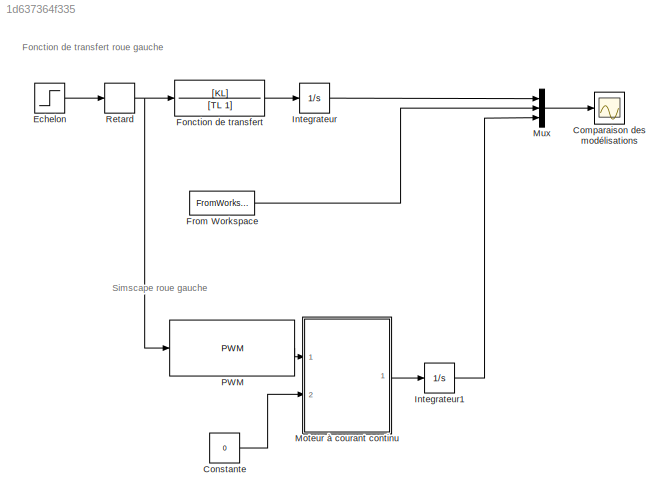
MODEL slx_1d637364f335
KIND model
CONFIG AbsTol = auto
CONFIG FixedStep = 0.00025
CONFIG InitFcn = load('LeftOutput_Measures.mat');\nload('LeftOutput_Measures.mat');\nParametres_Rover
CONFIG MaxStep = auto
CONFIG MinStep = auto
CONFIG RelTol = 1e-3
CONFIG SampleTimeConstraint = Unconstrained
CONFIG Solver = ode23t
CONFIG SolverMode = Auto
CONFIG SolverName = ode23t
CONFIG StartTime = 0.0
CONFIG StopTime = 10
BLOCK [Scope] Comparaison des modélisations
  Floating = off
  LimitDataPoints = off
  NumInputPorts = 1
  Ports = [1]
  TimeRange = 10
  YMax = 9000
  YMin = 1500
BLOCK [Constant] Constante
  Value = 0
BLOCK [Step] Echelon
  After = 50
  SampleTime = 0
  Time = 3
BLOCK [TransferFcn] Fonction de transfert
  Denominator = [TL 1]
  Numerator = [KL]
BLOCK [FromWorkspace] From Workspace
  SampleTime = 0
  VariableName = LeftOutput
  ZeroCross = on
BLOCK [Integrator] Integrateur
  Ports = [1, 1]
BLOCK [Integrator] Integrateur1
  Ports = [1, 1]
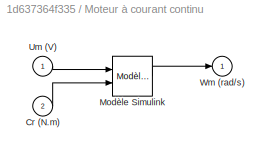
BLOCK [SubSystem] Moteur à courant continu
  AttributesFormatString = %<BlockChoice>
  BlockChoice = Modèle Simulink
  MemberBlocks = Modèle Simscape,Modèle Simulink
  Ports = [2, 1]
  RequestExecContextInheritance = off
  TemplateBlock = SingleMotor_V_to_rads/DC Motor
BLOCK [Inport] Moteur à courant continu/Cr (N.m)
  IconDisplay = Port number
  Port = 2
BLOCK [Reference] Moteur à courant continu/Modèle Simulink  REF=SingleMotor_V_to_rads/Modèle Simulink
  Jm_lib = Jm
  Kphi_lib = Kphi
  Lm_lib = Lm
  Ports = [2, 1]
  Rm_lib = Rm
  SourceBlock = SingleMotor_V_to_rads/Modèle Simulink
  bm_lib = bm
BLOCK [Inport] Moteur à courant continu/Um (V)
  IconDisplay = Port number
BLOCK [Outport] Moteur à courant continu/Wm (rad//s)
  IconDisplay = Port number
BLOCK [Mux] Mux
  DisplayOption = bar
  Inputs = 3
  Ports = [3, 1]
BLOCK [Reference] PWM  REF=SingleMotor_Duty_to_inc/PWM
  FreqTriangle = FreqPWM
  Ports = [1, 1]
  SourceBlock = SingleMotor_Duty_to_inc/PWM
BLOCK [TransportDelay] Retard
  DelayTime = TdL
  Ports = [1, 1]
ANNOTATION (root): Fonction de transfert roue gauche
ANNOTATION (root): Simscape roue gauche
LINE Constante:1 -> Moteur à courant continu:2
LINE Echelon:1 -> Retard:1
LINE Fonction de transfert:1 -> Integrateur:1
LINE From Workspace:1 -> Mux:2
LINE Integrateur1:1 -> Mux:3
LINE Integrateur:1 -> Mux:1
LINE Moteur à courant continu:1 -> Integrateur1:1
LINE Mux:1 -> Comparaison des modélisations:1
LINE PWM:1 -> Moteur à courant continu:1
NET Retard:1 -> Fonction de transfert:1, PWM:1
note: NET lines group one-source signal fan-out (src -> all destinations, sorted); 1:1 wires keep LINE
